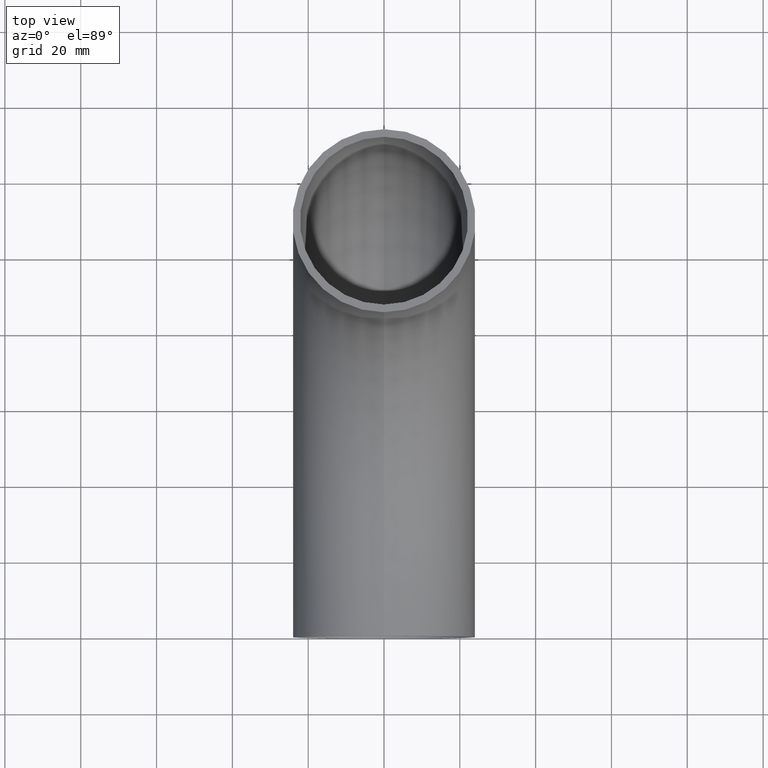
[diagram: clean part render]
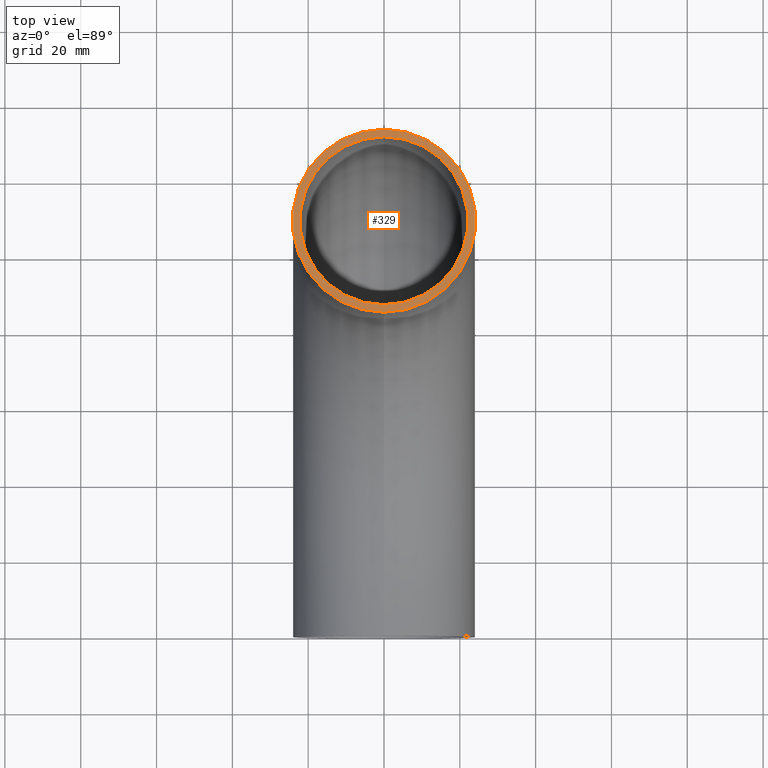
[diagram: same view with one face highlighted and labeled with its STEP entity id]
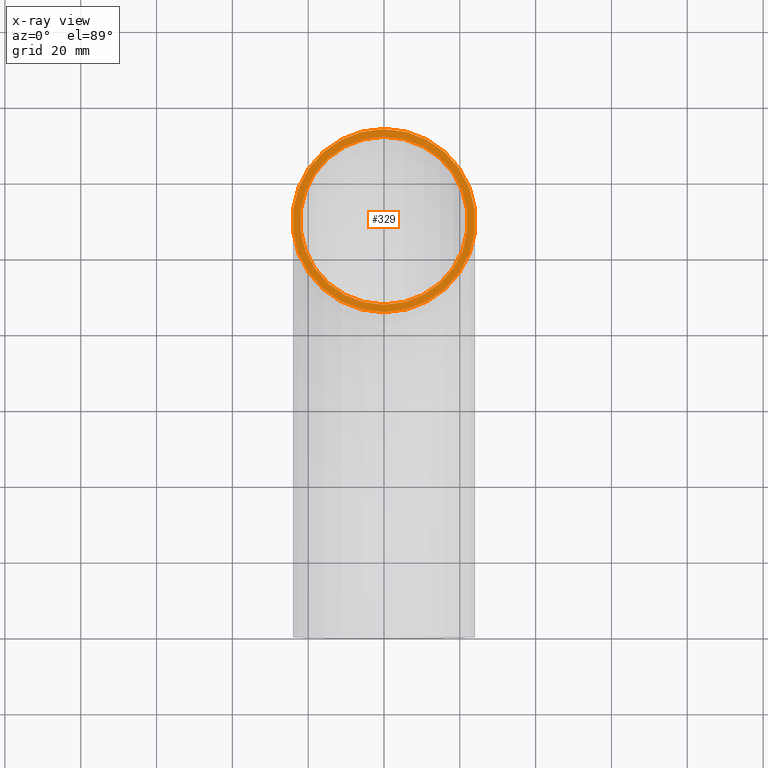
[diagram: x-ray of the same camera — body ghosted, the highlighted face saturated]
A machine part, top view. The second image highlights one B-rep face of the part: STEP entity #329.
The next image is the same camera in x-ray: the body ghosted, the highlighted face saturated — about 0% of this face is hidden behind the body in this view.
In plain terms, the highlighted planar face has unit normal (0, 0, 1).
Its self-contained STEP definition (entity closure, byte-faithful):
#50 = CARTESIAN_POINT ( 'NONE',  ( 0.0000000000000000000, 108.0000000000000000, -6.613092715395707500E-015 ) ) ;
#311 = DIRECTION ( 'NONE',  ( 0.0000000000000000000, -1.000000000000000000, 6.123233995736766000E-017 ) ) ;
#329 = ADVANCED_FACE ( 'NONE', ( #5185, #4628 ), #10279, .T. ) ;
#400 = ORIENTED_EDGE ( 'NONE', *, *, #5348, .T. ) ;
#644 = AXIS2_PLACEMENT_3D ( 'NONE', #8518, #5823, #311 ) ;
#662 = AXIS2_PLACEMENT_3D ( 'NONE', #3085, #8453, #5803 ) ;
#971 = ORIENTED_EDGE ( 'NONE', *, *, #10742, .T. ) ;
#2225 = CARTESIAN_POINT ( 'NONE',  ( 0.0000000000000000000, 132.1499999999999800, -8.091853725366135600E-015 ) ) ;
#2505 = CIRCLE ( 'NONE', #4215, 22.14999999999998800 ) ;
#2820 = DIRECTION ( 'NONE',  ( 0.0000000000000000000, 6.123233995736766000E-017, 1.000000000000000000 ) ) ;
#3085 = CARTESIAN_POINT ( 'NONE',  ( 0.0000000000000000000, 108.0000000000000000, -6.613092715395707500E-015 ) ) ;
#3134 = VERTEX_POINT ( 'NONE', #3946 ) ;
#3470 = CIRCLE ( 'NONE', #662, 24.14999999999999100 ) ;
#3641 = EDGE_CURVE ( 'NONE', #3874, #3134, #2505, .T. ) ;
#3661 = EDGE_LOOP ( 'NONE', ( #8475, #4914 ) ) ;
#3874 = VERTEX_POINT ( 'NONE', #11047 ) ;
#3946 = CARTESIAN_POINT ( 'NONE',  ( 0.0000000000000000000, 85.85000000000000900, -5.256796385340013600E-015 ) ) ;
#4215 = AXIS2_PLACEMENT_3D ( 'NONE', #50, #2820, #6382 ) ;
#4628 = FACE_OUTER_BOUND ( 'NONE', #7021, .T. ) ;
#4636 = DIRECTION ( 'NONE',  ( 0.0000000000000000000, -1.000000000000000000, 6.123233995736768500E-017 ) ) ;
#4713 = DIRECTION ( 'NONE',  ( 0.0000000000000000000, 6.123233995736766000E-017, 1.000000000000000000 ) ) ;
#4914 = ORIENTED_EDGE ( 'NONE', *, *, #3641, .F. ) ;
#5185 = FACE_BOUND ( 'NONE', #3661, .T. ) ;
#5186 = AXIS2_PLACEMENT_3D ( 'NONE', #7980, #8906, #10819 ) ;
#5348 = EDGE_CURVE ( 'NONE', #6613, #10288, #3470, .T. ) ;
#5803 = DIRECTION ( 'NONE',  ( 0.0000000000000000000, -1.000000000000000000, 6.123233995736768500E-017 ) ) ;
#5823 = DIRECTION ( 'NONE',  ( 0.0000000000000000000, 6.123233995736766000E-017, 1.000000000000000000 ) ) ;
#6382 = DIRECTION ( 'NONE',  ( 0.0000000000000000000, -1.000000000000000000, 6.123233995736767300E-017 ) ) ;
#6613 = VERTEX_POINT ( 'NONE', #9875 ) ;
#7021 = EDGE_LOOP ( 'NONE', ( #400, #971 ) ) ;
#7252 = CIRCLE ( 'NONE', #5186, 22.14999999999998800 ) ;
#7980 = CARTESIAN_POINT ( 'NONE',  ( 0.0000000000000000000, 108.0000000000000000, -6.613092715395707500E-015 ) ) ;
#8101 = EDGE_CURVE ( 'NONE', #3134, #3874, #7252, .T. ) ;
#8453 = DIRECTION ( 'NONE',  ( 0.0000000000000000000, 6.123233995736766000E-017, 1.000000000000000000 ) ) ;
#8475 = ORIENTED_EDGE ( 'NONE', *, *, #8101, .F. ) ;
#8518 = CARTESIAN_POINT ( 'NONE',  ( 0.0000000000000000000, 108.0000000000000000, -6.613092715395707500E-015 ) ) ;
#8906 = DIRECTION ( 'NONE',  ( 0.0000000000000000000, 6.123233995736766000E-017, 1.000000000000000000 ) ) ;
#9875 = CARTESIAN_POINT ( 'NONE',  ( 0.0000000000000000000, 83.85000000000000900, -5.134331705425278500E-015 ) ) ;
#10279 = PLANE ( 'NONE',  #644 ) ;
#10288 = VERTEX_POINT ( 'NONE', #2225 ) ;
#10623 = CIRCLE ( 'NONE', #10942, 24.14999999999999100 ) ;
#10742 = EDGE_CURVE ( 'NONE', #10288, #6613, #10623, .T. ) ;
#10819 = DIRECTION ( 'NONE',  ( 0.0000000000000000000, -1.000000000000000000, 6.123233995736767300E-017 ) ) ;
#10907 = CARTESIAN_POINT ( 'NONE',  ( 0.0000000000000000000, 108.0000000000000000, -6.613092715395707500E-015 ) ) ;
#10942 = AXIS2_PLACEMENT_3D ( 'NONE', #10907, #4713, #4636 ) ;
#11047 = CARTESIAN_POINT ( 'NONE',  ( 0.0000000000000000000, 130.1499999999999800, -7.969389045451400500E-015 ) ) ;